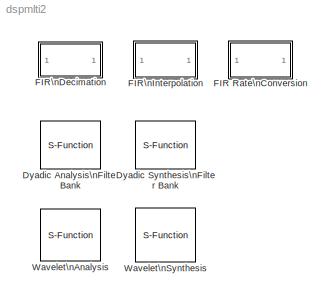
MODEL dspmlti2
KIND library
BLOCK [S-Function] Dyadic Analysis\nFilter Bank
  FunctionName = sdspadyad
  MaskCallbackString = ||||dspblkadyad|
  MaskDescription = Apply a sequence of FIR filters to the input signal, downsampling by two following each filtering operation.  With reference to the icon on the block, a lowpass filter is applied at each descending branch and a highpass filter is applied at each non-descending branch.  Normally, the lowpass and highpass filters are complementary, as in a typical wavelet-based signal decomposition.
  MaskDisplay = text(0.1,0.15,str)\nplot(x,y)
  MaskEnableString = on,on,on,on,on,off
  MaskHelp = web(dspbhelp);
  MaskIconFrame = on
  MaskIconOpaque = on
  MaskIconRotate = port
  MaskIconUnits = normalized
  MaskInitialization = [hl,hh,x,y,str] = dspblkadyad(hl,hh,numLevels,tree);\nif strcmp(frame,'off'), numChans=-1; end
  MaskPromptString = Lowpass FIR filter coefficients:|Highpass FIR filter coefficients:|Number of levels:|Tree structure:|Frame-based inputs|Number of channels:
  MaskSelfModifiable = on
  MaskStyleString = edit,edit,edit,popup(Asymmetric|Symmetric),checkbox,edit
  MaskTunableValueString = off,off,off,off,off,off
  MaskType = Dyadic Analysis Filter Bank
  MaskValueString = fir1(12,0.4)|fir1(12,0.6,'high')|2|Asymmetric|off|1
  MaskVariables = hl=@1;hh=@2;numLevels=@3;tree=@4;frame=&5;numChans=@6;
  MaskVisibilityString = on,on,on,on,on,on
  Parameters = hl,hh,numLevels,tree,numChans
  PortCounts = []
  Ports = [1, 3, 0, 0, 0]
  SFunctionModules = ''
BLOCK [S-Function] Dyadic Synthesis\nFilter Bank
  FunctionName = sdspsdyad
  MaskCallbackString = ||||dspblksdyad|
  MaskDescription = Apply a sequence of FIR filters to the input signals, upsampling by two following each filtering operation.  With reference to the icon on the block, a lowpass filter is applied at each descending branch and a highpass filter is applied at each non-descending branch.  Normally, the lowpass and highpass filters are complementary, as in a typical wavelet-based signal reconstruction.
  MaskDisplay = text(0.80,0.15,str)\nplot(x,y)
  MaskEnableString = on,on,on,on,on,off
  MaskHelp = web(dspbhelp);
  MaskIconFrame = on
  MaskIconOpaque = on
  MaskIconRotate = port
  MaskIconUnits = normalized
  MaskInitialization = [hl,hh,x,y,str] = dspblksdyad(hl,hh,numLevels,tree);\nif strcmp(frame,'off'), numChans=-1; end
  MaskPromptString = Lowpass FIR filter coefficients:|Highpass FIR filter coefficients:|Number of levels:|Tree structure:|Frame-based inputs|Number of channels:
  MaskSelfModifiable = on
  MaskStyleString = edit,edit,edit,popup(Asymmetric|Symmetric),checkbox,edit
  MaskTunableValueString = off,off,off,off,off,off
  MaskType = Dyadic Synthesis Filter Bank
  MaskValueString = fir1(12,0.4)|fir1(12,0.6,'high')|2|Asymmetric|off|1
  MaskVariables = hl=@1;hh=@2;numLevels=@3;tree=@4;frame=&5;numChans=@6;
  MaskVisibilityString = on,on,on,on,on,on
  Parameters = hl,hh,numLevels,tree,numChans
  PortCounts = []
  Ports = [3, 1, 0, 0, 0]
  SFunctionModules = ''
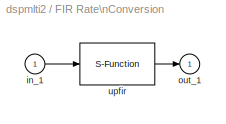
BLOCK [SubSystem] FIR Rate\nConversion
  MaskCallbackString = |||
  MaskDescription = Upsample input signal by an integer factor, apply an FIR filter and downsample by another integer factor. Implemented using an efficient polyphase structure.  Only frame-based processing is supported.  The filter coefficients are scaled by the upsample factor. For some combinations of upsample and downsample factors there will be a delay in the output due to causality in the polyphase network.\n
  MaskDisplay = disp(str)
  MaskEnableString = on,on,on,on
  MaskHelp = web(dspbhelp);
  MaskIconFrame = on
  MaskIconOpaque = on
  MaskIconRotate = none
  MaskIconUnits = autoscale
  MaskInitialization = outputBufInitCond = 0;\nstr = ['x[?]'];\n[h,L,M,n0,n1,str]= dspblkupfirdn('setup',h,L,M);\n
  MaskPromptString = Interpolation factor:|FIR filter coefficients:|Decimation factor:|Number of channels:
  MaskSelfModifiable = on
  MaskStyleString = edit,edit,edit,edit
  MaskTunableValueString = off,off,off,off
  MaskType = FIR Rate Conversion
  MaskValueString = 3|remez(70,[0 .28 .32 1],[1 1 0 0])|2|1
  MaskVariables = L=@1;h=@2;M=@3;numChans=@4;
  MaskVisibilityString = on,on,on,on
  Ports = [1, 1, 0, 0, 0]
  ShowPortLabels = on
BLOCK [Inport] FIR Rate\nConversion/in_1
  DataType = auto
  Interpolate = on
  Port = 1
  PortWidth = -1
  SampleTime = -1
  SignalType = auto
BLOCK [Outport] FIR Rate\nConversion/out_1
  InitialOutput = 0
  OutputWhenDisabled = held
  Port = 1
BLOCK [S-Function] FIR Rate\nConversion/upfir
  FunctionName = sdspupfirdn
  Parameters = h,L,M,n0,n1,numChans,outputBufInitCond
  PortCounts = []
  Ports = [1, 1, 0, 0, 0]
  SFunctionModules = ''
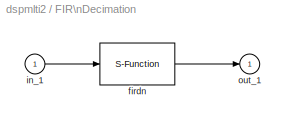
BLOCK [SubSystem] FIR\nDecimation
  MaskCallbackString = ||dspblkfirdn||
  MaskDescription = Apply an FIR filter to the input signal, then downsample by an integer factor.  Implemented using an efficient polyphase FIR decimation structure.
  MaskDisplay = disp(str)
  MaskEnableString = on,on,on,off,off
  MaskHelp = web(dspbhelp);
  MaskIconFrame = on
  MaskIconOpaque = on
  MaskIconRotate = none
  MaskIconUnits = autoscale
  MaskInitialization = outputBufInitCond = 0;\n[str,numChans] = dspblkfirdn('setup1',numChans);\n[h,framing,str] = dspblkfirdn('setup2',h,D,framing);\n
  MaskPromptString = FIR filter coefficients:|Decimation factor:|Frame-based inputs|Number of channels:|Framing:
  MaskSelfModifiable = on
  MaskStyleString = edit,edit,checkbox,edit,popup(Maintain input frame size|Maintain input frame rate)
  MaskTunableValueString = off,off,off,off,off
  MaskType = FIR Decimation
  MaskValueString = fir1(35,0.4)|2|off|1|Maintain input frame size
  MaskVariables = h=@1;D=@2;frame=&3;numChans=@4;framing=@5;
  MaskVisibilityString = on,on,on,on,on
  Ports = [1, 1, 0, 0, 0]
  ShowPortLabels = on
BLOCK [S-Function] FIR\nDecimation/firdn
  FunctionName = sdspfirdn
  Parameters = h,D,numChans,framing,outputBufInitCond
  PortCounts = []
  Ports = [1, 1, 0, 0, 0]
  SFunctionModules = ''
BLOCK [Inport] FIR\nDecimation/in_1
  DataType = auto
  Interpolate = on
  Port = 1
  PortWidth = -1
  SampleTime = -1
  SignalType = auto
BLOCK [Outport] FIR\nDecimation/out_1
  InitialOutput = 0
  OutputWhenDisabled = held
  Port = 1
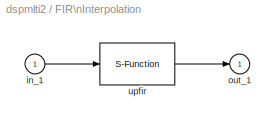
BLOCK [SubSystem] FIR\nInterpolation
  MaskCallbackString = ||dspblkupfir||
  MaskDescription = Upsample input signal by an integer factor, then apply an FIR filter.  Implemented using an efficient polyphase interpolation structure.  The filter coefficients are scaled by the interpolation factor.
  MaskDisplay = disp(str)
  MaskEnableString = on,on,on,off,off
  MaskHelp = web(dspbhelp);
  MaskIconFrame = on
  MaskIconOpaque = on
  MaskIconRotate = none
  MaskIconUnits = autoscale
  MaskInitialization = outputBufInitCond = 0;\n[str,numChans] = dspblkupfir('setup1',numChans);\n[h,framing,str]= dspblkupfir('setup2',h,L,framing);
  MaskPromptString = FIR filter coefficients:|Interpolation factor:|Frame-based inputs|Number of channels:|Framing:
  MaskSelfModifiable = on
  MaskStyleString = edit,edit,checkbox,edit,popup(Maintain input frame size|Maintain input frame rate)
  MaskTunableValueString = off,off,off,off,off
  MaskType = FIR Interpolation
  MaskValueString = fir1(15,1/4)|3|off|1|Maintain input frame size
  MaskVariables = h=@1;L=@2;frame=&3;numChans=@4;framing=@5;
  MaskVisibilityString = on,on,on,on,on
  Ports = [1, 1, 0, 0, 0]
  ShowPortLabels = on
BLOCK [Inport] FIR\nInterpolation/in_1
  DataType = auto
  Interpolate = on
  Port = 1
  PortWidth = -1
  SampleTime = -1
  SignalType = auto
BLOCK [Outport] FIR\nInterpolation/out_1
  InitialOutput = 0
  OutputWhenDisabled = held
  Port = 1
BLOCK [S-Function] FIR\nInterpolation/upfir
  FunctionName = sdspupfir
  Parameters = h,L,numChans,framing,outputBufInitCond
  PortCounts = []
  Ports = [1, 1, 0, 0, 0]
  SFunctionModules = ''
BLOCK [S-Function] Wavelet\nAnalysis
  FunctionName = sdspadyad
  MaskCallbackString = dspblkwavedec||||dspblkwavedec|
  MaskDescription = Multilevel discrete 1-D wavelet decomposition using a specific wavelet.\n\nThe Wavelet Toolbox must be installed to use this block.
  MaskDisplay = text(0.08,0.1,str)\nplot(x,y)
  MaskEnableString = on,off,off,on,on,off
  MaskHelp = web(dspbhelp);
  MaskIconFrame = on
  MaskIconOpaque = on
  MaskIconRotate = port
  MaskIconUnits = normalized
  MaskInitialization = [x,y,str] = dspblkwavedec('icon');\n[hl, hh, tree] = dspblkwavedec('init');\nif strcmp(Frame,'off'), NumChans=-1; end\n
  MaskPromptString = Wavelet name:|Filter order [synthesis / analysis]:|Wavelet order: |Number of levels:|Frame-based inputs|Number of channels:
  MaskSelfModifiable = on
  MaskStyleString = popup(Haar|Daubechies|Symlets|Coiflets|Biorthogonal|Reverse Biorthogonal|Discrete Meyer),popup([1 / 1]|[1 / 3]|[1 / 5]|[2 / 2]|[2 / 4]|[2 / 6]|[2 / 8]|[3 / 1]|[3 / 3]|[3 / 5]|[3 / 7]|[3 / 9]|[4 / 4]|[5 / 5]|[6 / 8]),edit,edit,checkbox,edit
  MaskTunableValueString = on,on,on,off,off,off
  MaskType = Wavelet Analysis
  MaskValueString = Haar|[1 / 1]|2|2|off|1
  MaskVariables = Wname=&1;OrdRec_ordDec=&2;Order=@3;NumLevels=@4;Frame=&5;NumChans=@6;
  MaskVisibilityString = on,off,off,on,on,on
  Parameters = hl,hh,NumLevels,tree,NumChans
  PortCounts = []
  Ports = [1, 3, 0, 0, 0]
  SFunctionModules = ''
BLOCK [S-Function] Wavelet\nSynthesis
  FunctionName = sdspsdyad
  MaskCallbackString = dspblkwaverec||||dspblkwaverec|
  MaskDescription = Multilevel discrete 1-D wavelet reconstruction using a specific wavelet.\n\nThe Wavelet Toolbox must be installed to use this block.
  MaskDisplay = text(0.37,0.15,str)\nplot(x,y)
  MaskEnableString = on,off,off,on,on,off
  MaskHelp = web(dspbhelp);
  MaskIconFrame = on
  MaskIconOpaque = on
  MaskIconRotate = port
  MaskIconUnits = normalized
  MaskInitialization = [x,y,str] = dspblkwaverec('icon');\n[hl, hh, tree] = dspblkwaverec('init');\nif strcmp(Frame,'off'), NumChans=-1; end\n
  MaskPromptString = Wavelet name:|Filter order [synthesis, analysis]:|Wavelet order: |Number of levels:|Frame-based inputs|Number of channels:
  MaskSelfModifiable = on
  MaskStyleString = popup(Haar|Daubechies|Symlets|Coiflets|Biorthogonal|Reverse Biorthogonal|Discrete Meyer),popup([1 / 1]|[1 / 3]|[1 / 5]|[2 / 2]|[2 / 4]|[2 / 6]|[2 / 8]|[3 / 1]|[3 / 3]|[3 / 5]|[3 / 7]|[3 / 9]|[4 / 4]|[5 / 5]|[6 / 8]),edit,edit,checkbox,edit
  MaskTunableValueString = on,on,on,off,off,off
  MaskType = Wavelet Synthesis
  MaskValueString = Haar|[1 / 1]|2|2|off|1
  MaskVariables = Wname=&1;OrdRec_ordDec=&2;Order=@3;NumLevels=@4;Frame=&5;NumChans=@6;
  MaskVisibilityString = on,off,off,on,on,on
  Parameters = hl,hh,NumLevels,tree,NumChans
  PortCounts = []
  Ports = [3, 1, 0, 0, 0]
  SFunctionModules = ''
LINE FIR Rate\nConversion/in_1:1 -> FIR Rate\nConversion/upfir:1
LINE FIR Rate\nConversion/upfir:1 -> FIR Rate\nConversion/out_1:1
LINE FIR\nDecimation/firdn:1 -> FIR\nDecimation/out_1:1
LINE FIR\nDecimation/in_1:1 -> FIR\nDecimation/firdn:1
LINE FIR\nInterpolation/in_1:1 -> FIR\nInterpolation/upfir:1
LINE FIR\nInterpolation/upfir:1 -> FIR\nInterpolation/out_1:1
